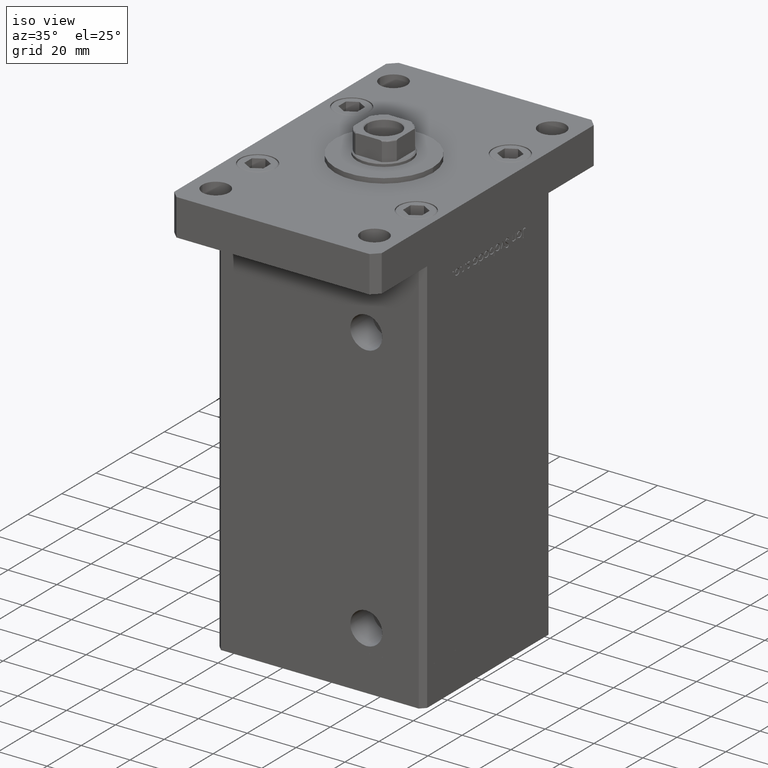
[diagram: clean part render]
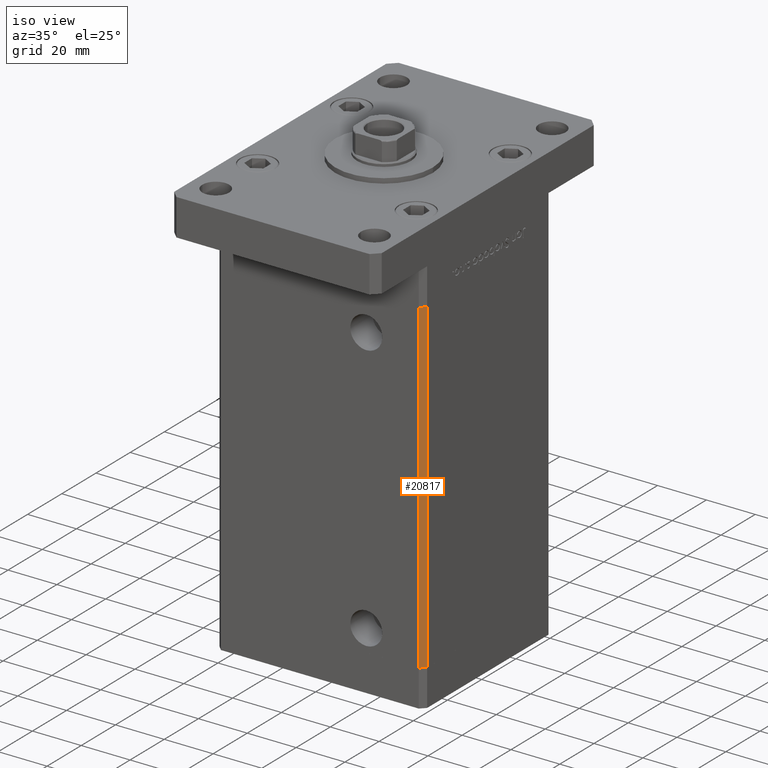
[diagram: same view with one face highlighted and labeled with its STEP entity id]
A machine part, iso view. The second image highlights one B-rep face of the part: STEP entity #20817.
In plain terms, the highlighted planar face has unit normal (0.7071, -0.7071, 0).
Its self-contained STEP definition (entity closure, byte-faithful):
#173 = ORIENTED_EDGE ( 'NONE', *, *, #48028, .F. ) ;
#389 = CARTESIAN_POINT ( 'NONE',  ( 42.49999999999998579, -35.50000000000000711, 0.000000000000000000 ) ) ;
#979 = VECTOR ( 'NONE', #20512, 1000.000000000000000 ) ;
#3639 = CARTESIAN_POINT ( 'NONE',  ( 42.49999999999998579, -35.50000000000000711, 133.5000000000000000 ) ) ;
#4163 = ORIENTED_EDGE ( 'NONE', *, *, #14041, .F. ) ;
#5283 = VERTEX_POINT ( 'NONE', #7121 ) ;
#6385 = CARTESIAN_POINT ( 'NONE',  ( 42.49999999999998579, -35.50000000000000711, 0.000000000000000000 ) ) ;
#6952 = EDGE_LOOP ( 'NONE', ( #173, #4163, #14237, #19103 ) ) ;
#7121 = CARTESIAN_POINT ( 'NONE',  ( 40.49999999999998579, -37.50000000000000711, 133.5000000000000000 ) ) ;
#10849 = CARTESIAN_POINT ( 'NONE',  ( 42.49999999999998579, -35.50000000000000711, 133.5000000000000000 ) ) ;
#14041 = EDGE_CURVE ( 'NONE', #32119, #14231, #36560, .T. ) ;
#14231 = VERTEX_POINT ( 'NONE', #6385 ) ;
#14237 = ORIENTED_EDGE ( 'NONE', *, *, #49411, .T. ) ;
#19103 = ORIENTED_EDGE ( 'NONE', *, *, #52405, .T. ) ;
#19189 = CARTESIAN_POINT ( 'NONE',  ( 40.49999999999998579, -37.50000000000000711, 133.5000000000000000 ) ) ;
#19229 = FACE_OUTER_BOUND ( 'NONE', #6952, .T. ) ;
#19497 = PLANE ( 'NONE',  #49706 ) ;
#20512 = DIRECTION ( 'NONE',  ( -0.000000000000000000, -0.000000000000000000, -1.000000000000000000 ) ) ;
#20817 = ADVANCED_FACE ( 'NONE', ( #19229 ), #19497, .T. ) ;
#20985 = CARTESIAN_POINT ( 'NONE',  ( 40.49999999999998579, -37.50000000000000711, 0.000000000000000000 ) ) ;
#24121 = DIRECTION ( 'NONE',  ( 0.7071067811865474617, 0.7071067811865474617, 0.000000000000000000 ) ) ;
#27574 = VERTEX_POINT ( 'NONE', #20985 ) ;
#30125 = VECTOR ( 'NONE', #40110, 1000.000000000000000 ) ;
#30912 = VECTOR ( 'NONE', #48958, 1000.000000000000114 ) ;
#31717 = VECTOR ( 'NONE', #33488, 1000.000000000000114 ) ;
#31735 = DIRECTION ( 'NONE',  ( 0.7071067811865475727, -0.7071067811865475727, 0.000000000000000000 ) ) ;
#32119 = VERTEX_POINT ( 'NONE', #44581 ) ;
#33013 = CARTESIAN_POINT ( 'NONE',  ( 42.49999999999998579, -35.50000000000000711, 133.5000000000000000 ) ) ;
#33488 = DIRECTION ( 'NONE',  ( -0.7071067811865474617, -0.7071067811865474617, 0.000000000000000000 ) ) ;
#36560 = LINE ( 'NONE', #33013, #979 ) ;
#40110 = DIRECTION ( 'NONE',  ( -0.000000000000000000, -0.000000000000000000, -1.000000000000000000 ) ) ;
#41604 = LINE ( 'NONE', #3639, #30912 ) ;
#44171 = LINE ( 'NONE', #19189, #30125 ) ;
#44581 = CARTESIAN_POINT ( 'NONE',  ( 42.49999999999998579, -35.50000000000000711, 133.5000000000000000 ) ) ;
#48028 = EDGE_CURVE ( 'NONE', #14231, #27574, #50570, .T. ) ;
#48958 = DIRECTION ( 'NONE',  ( -0.7071067811865474617, -0.7071067811865474617, 0.000000000000000000 ) ) ;
#49411 = EDGE_CURVE ( 'NONE', #32119, #5283, #41604, .T. ) ;
#49706 = AXIS2_PLACEMENT_3D ( 'NONE', #10849, #31735, #24121 ) ;
#50570 = LINE ( 'NONE', #389, #31717 ) ;
#52405 = EDGE_CURVE ( 'NONE', #5283, #27574, #44171, .T. ) ;